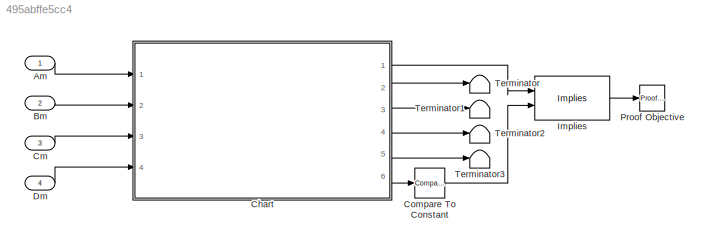
MODEL slx_495abffe5cc4
KIND model
CONFIG AbsTol = auto
CONFIG EnableMultiTasking = off
CONFIG FixedStep = 1
CONFIG MaxStep = auto
CONFIG MinStep = auto
CONFIG RelTol = 1e-3
CONFIG SampleTimeConstraint = Unconstrained
CONFIG Solver = FixedStepDiscrete
CONFIG SolverName = FixedStepDiscrete
CONFIG StartTime = 0.0
CONFIG StopTime = 10.0
BLOCK [Inport] Am
BLOCK [Inport] Bm
  Port = 2
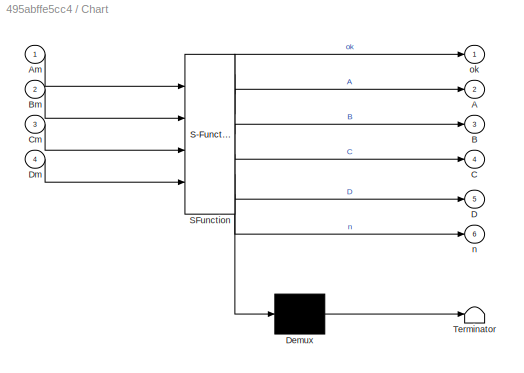
BLOCK [SubSystem] Chart
  ErrorFcn = Stateflow.Translate.translate
  PermitHierarchicalResolution = ExplicitOnly
  Ports = [4, 6]
  RequestExecContextInheritance = off
  SFBlockType = Chart
  TreatAsAtomicUnit = on
BLOCK [Demux] Chart/ Demux 
  Outputs = 1
  Ports = [1, 1]
BLOCK [S-Function] Chart/ SFunction 
  EnableBusSupport = on
  FunctionName = sf_sfun
  PortCounts = [4 7]
  Ports = [4, 7]
  SFcnIsStateOwnerBlock = off
  SFunctionDeploymentMode = off
  Tag = Stateflow S-Function 3
BLOCK [Terminator] Chart/ Terminator 
BLOCK [Outport] Chart/A
  Port = 2
BLOCK [Inport] Chart/Am
BLOCK [Outport] Chart/B
  Port = 3
BLOCK [Inport] Chart/Bm
  Port = 2
BLOCK [Outport] Chart/C
  Port = 4
BLOCK [Inport] Chart/Cm
  Port = 3
BLOCK [Outport] Chart/D
  Port = 5
BLOCK [Inport] Chart/Dm
  Port = 4
BLOCK [Outport] Chart/n
  Port = 6
BLOCK [Outport] Chart/ok
BLOCK [Inport] Cm
  Port = 3
BLOCK [Reference] Compare To Constant  REF=simulink/Logic and Bit
Operations/Compare
To Constant
  Ports = [1, 1]
  SourceBlock = simulink/Logic and Bit\nOperations/Compare\nTo Constant
  SourceProductBaseCode = SL
  SourceType = Compare To Constant
BLOCK [Inport] Dm
  Port = 4
BLOCK [Reference] Implies  REF=sldvlib/Verification Utilities/Implies
  Ports = [2, 1]
  SourceBlock = sldvlib/Verification Utilities/Implies
  SourceProductBaseCode = SL
  SourceType = Design Verifier Implies
BLOCK [Reference] Proof Objective  REF=sldvlib/Objectives and Constraints/Proof Objective
  AttributesFormatString = %<intervals>
  NameLocation = top
  Ports = [1]
  SourceBlock = sldvlib/Objectives and Constraints/Proof Objective
  SourceProductBaseCode = SL
  SourceType = Design Verifier Proof Objective
BLOCK [Terminator] Terminator
BLOCK [Terminator] Terminator1
BLOCK [Terminator] Terminator2
BLOCK [Terminator] Terminator3
LINE Am:1 -> Chart:1
LINE Bm:1 -> Chart:2
LINE Chart:1 -> Implies:1
LINE Chart:2 -> Terminator:1
LINE Chart:3 -> Terminator1:1
LINE Chart:4 -> Terminator2:1
LINE Chart:5 -> Terminator3:1
LINE Chart:6 -> Compare To Constant:1
LINE Cm:1 -> Chart:3
LINE Compare To Constant:1 -> Implies:2
LINE Dm:1 -> Chart:4
LINE Implies:1 -> Proof Objective:1
CHART Chart states=3 transitions=22
  STATE_LABEL 'State'
  STATE_LABEL 'Goal'
  STATE_LABEL 'Complete'
CHART  states=0 transitions=0
